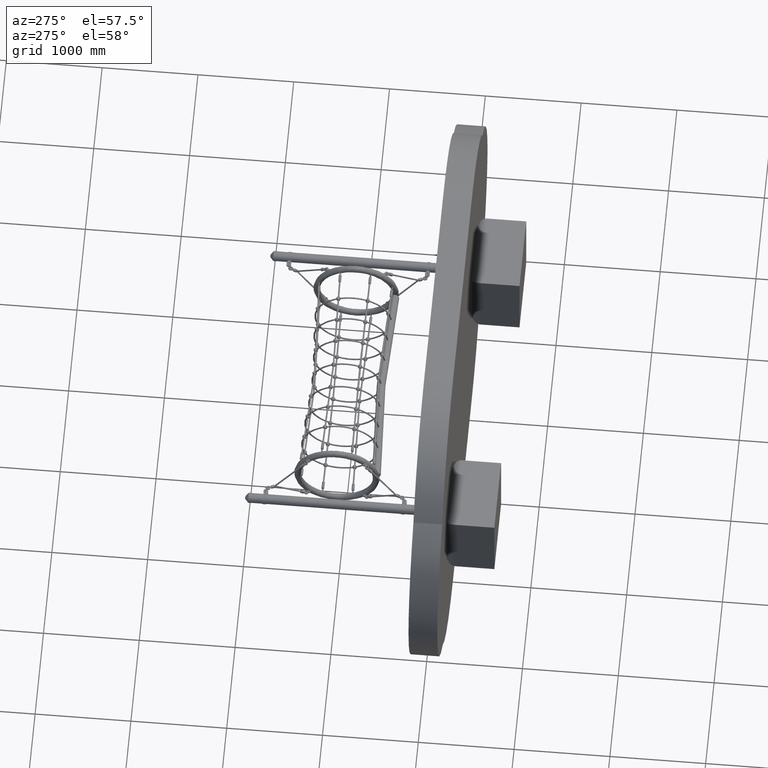
[diagram: clean part render]
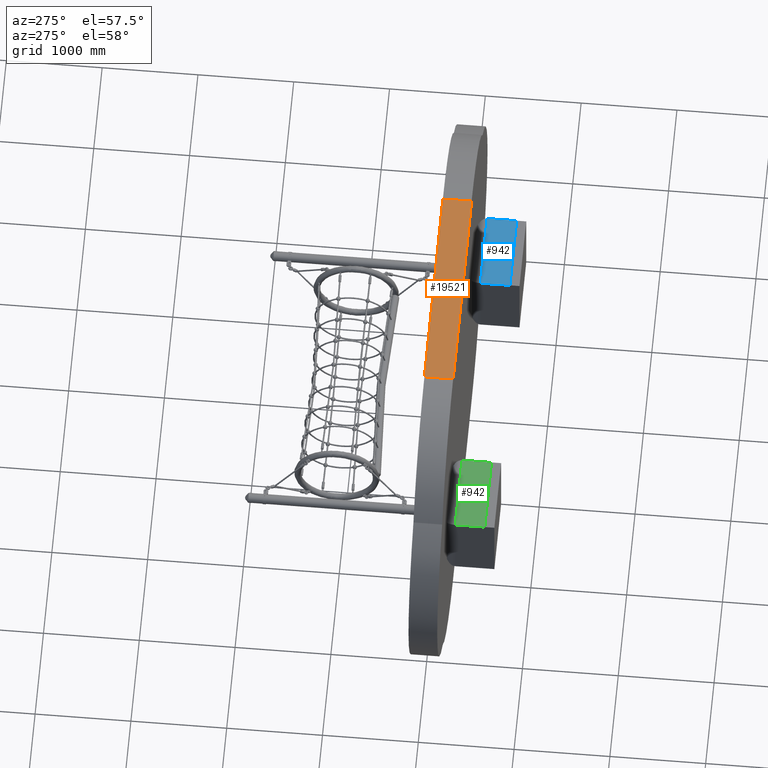
[diagram: same view with three faces highlighted in distinct colors, each labeled with its STEP entity id]
A machine part, auxiliary view with three faces highlighted in distinct colors.
Their STEP definitions:

[orange] entity #19521 — the highlighted planar face has unit normal (0.0001, 0, -1).
#552 = LINE ( 'NONE', #3046, #28183 ) ;
#2391 = LINE ( 'NONE', #34105, #29865 ) ;
#2535 = CARTESIAN_POINT ( 'NONE',  ( 2.600000000000000100, 0.0000000000000000000, 1.961999999999999700 ) ) ;
#3046 = CARTESIAN_POINT ( 'NONE',  ( 0.3999999999999999100, 0.2999999999999999900, 1.962000000000000200 ) ) ;
#5821 = ORIENTED_EDGE ( 'NONE', *, *, #6701, .F. ) ;
#6123 = ORIENTED_EDGE ( 'NONE', *, *, #20514, .F. ) ;
#6701 = EDGE_CURVE ( 'NONE', #30652, #32998, #17363, .T. ) ;
#8747 = CARTESIAN_POINT ( 'NONE',  ( 2.600000000000000100, 0.2999999999999999900, 1.961999999999999700 ) ) ;
#9187 = CARTESIAN_POINT ( 'NONE',  ( 0.3999999999999999700, 0.2999999999999999900, 1.962000000000000200 ) ) ;
#9399 = LINE ( 'NONE', #29875, #22875 ) ;
#9799 = EDGE_LOOP ( 'NONE', ( #6123, #25415, #12569, #5821 ) ) ;
#10168 = VECTOR ( 'NONE', #25816, 1.000000000000000000 ) ;
#11498 = DIRECTION ( 'NONE',  ( -1.000000000000000000, 0.0000000000000000000, 2.018587317500284600E-016 ) ) ;
#12298 = CARTESIAN_POINT ( 'NONE',  ( 0.4000000000000001300, 0.0000000000000000000, 1.962000000000000200 ) ) ;
#12435 = CARTESIAN_POINT ( 'NONE',  ( 2.600000000000000500, 0.0000000000000000000, 1.961999999999999700 ) ) ;
#12569 = ORIENTED_EDGE ( 'NONE', *, *, #14367, .F. ) ;
#13777 = PLANE ( 'NONE',  #16251 ) ;
#14367 = EDGE_CURVE ( 'NONE', #32998, #27892, #552, .T. ) ;
#16193 = DIRECTION ( 'NONE',  ( -0.0000000000000000000, -1.000000000000000000, -0.0000000000000000000 ) ) ;
#16251 = AXIS2_PLACEMENT_3D ( 'NONE', #8747, #27307, #11498 ) ;
#17363 = LINE ( 'NONE', #2535, #10168 ) ;
#19193 = EDGE_CURVE ( 'NONE', #27892, #22388, #9399, .T. ) ;
#19521 = ADVANCED_FACE ( 'NONE', ( #24004 ), #13777, .F. ) ;
#20317 = CARTESIAN_POINT ( 'NONE',  ( 2.600000000000000100, 0.2999999999999999900, 1.962000000000000000 ) ) ;
#20514 = EDGE_CURVE ( 'NONE', #22388, #30652, #2391, .T. ) ;
#22232 = DIRECTION ( 'NONE',  ( 1.000000000000000000, 0.0000000000000000000, -0.0000000000000000000 ) ) ;
#22388 = VERTEX_POINT ( 'NONE', #20317 ) ;
#22875 = VECTOR ( 'NONE', #22232, 1.000000000000000000 ) ;
#24004 = FACE_OUTER_BOUND ( 'NONE', #9799, .T. ) ;
#25415 = ORIENTED_EDGE ( 'NONE', *, *, #19193, .F. ) ;
#25816 = DIRECTION ( 'NONE',  ( -1.000000000000000000, 0.0000000000000000000, 2.018587317500284600E-016 ) ) ;
#27307 = DIRECTION ( 'NONE',  ( -2.018587317500284600E-016, 0.0000000000000000000, -1.000000000000000000 ) ) ;
#27892 = VERTEX_POINT ( 'NONE', #9187 ) ;
#28183 = VECTOR ( 'NONE', #29672, 1.000000000000000000 ) ;
#29672 = DIRECTION ( 'NONE',  ( 0.0000000000000000000, 1.000000000000000000, 0.0000000000000000000 ) ) ;
#29865 = VECTOR ( 'NONE', #16193, 1.000000000000000000 ) ;
#29875 = CARTESIAN_POINT ( 'NONE',  ( 3.000000000000000000, 0.2999999999999999900, 1.962000000000000200 ) ) ;
#30652 = VERTEX_POINT ( 'NONE', #12435 ) ;
#32998 = VERTEX_POINT ( 'NONE', #12298 ) ;
#34105 = CARTESIAN_POINT ( 'NONE',  ( 2.600000000000000100, 0.2999999999999999900, 1.961999999999999700 ) ) ;

[blue] entity #942 — the highlighted planar face has unit normal (0, 0, -1).
#942 = ADVANCED_FACE ( 'NONE', ( #9864 ), #22914, .F. ) ;
#1705 = DIRECTION ( 'NONE',  ( 2.220446049250314100E-016, -1.000000000000000000, -0.0000000000000000000 ) ) ;
#1750 = CARTESIAN_POINT ( 'NONE',  ( 0.0000000000000000000, 0.09999999999999992200, 0.8000000000000000400 ) ) ;
#1793 = DIRECTION ( 'NONE',  ( -1.000000000000000000, -0.0000000000000000000, -0.0000000000000000000 ) ) ;
#2329 = CARTESIAN_POINT ( 'NONE',  ( 0.8000000000000000400, 0.09999999999999992200, 0.8000000000000000400 ) ) ;
#2664 = DIRECTION ( 'NONE',  ( -1.836970198721030200E-016, 1.000000000000000000, -0.0000000000000000000 ) ) ;
#2700 = CARTESIAN_POINT ( 'NONE',  ( 0.0000000000000000000, 0.09999999999999992200, 0.8000000000000000400 ) ) ;
#2978 = CARTESIAN_POINT ( 'NONE',  ( 1.387778780781445700E-017, 0.4085786437626903200, 0.8000000000000001600 ) ) ;
#3896 = VECTOR ( 'NONE', #2664, 1.000000000000000000 ) ;
#4766 = LINE ( 'NONE', #2329, #10356 ) ;
#5116 = DIRECTION ( 'NONE',  ( 1.000000000000000000, -0.0000000000000000000, 0.0000000000000000000 ) ) ;
#5635 = CARTESIAN_POINT ( 'NONE',  ( -9.184850993605148400E-017, 0.4085786437626903200, 0.8000000000000000400 ) ) ;
#9514 = EDGE_CURVE ( 'NONE', #29805, #22408, #28937, .T. ) ;
#9668 = EDGE_CURVE ( 'NONE', #11598, #29805, #11200, .T. ) ;
#9722 = EDGE_CURVE ( 'NONE', #15333, #11598, #31269, .T. ) ;
#9726 = EDGE_CURVE ( 'NONE', #22408, #15333, #4766, .T. ) ;
#9864 = FACE_OUTER_BOUND ( 'NONE', #25950, .T. ) ;
#10356 = VECTOR ( 'NONE', #1705, 1.000000000000000000 ) ;
#11200 = LINE ( 'NONE', #2700, #3896 ) ;
#11598 = VERTEX_POINT ( 'NONE', #34085 ) ;
#14218 = VECTOR ( 'NONE', #5116, 1.000000000000000000 ) ;
#15333 = VERTEX_POINT ( 'NONE', #17175 ) ;
#17175 = CARTESIAN_POINT ( 'NONE',  ( 0.8000000000000000400, 0.09999999999999992200, 0.8000000000000000400 ) ) ;
#21144 = DIRECTION ( 'NONE',  ( -1.000000000000000000, 0.0000000000000000000, -0.0000000000000000000 ) ) ;
#21259 = DIRECTION ( 'NONE',  ( 0.0000000000000000000, 0.0000000000000000000, -1.000000000000000000 ) ) ;
#21301 = CARTESIAN_POINT ( 'NONE',  ( -9.184850993605148400E-017, 0.5999999999999998700, 0.8000000000000000400 ) ) ;
#22408 = VERTEX_POINT ( 'NONE', #23090 ) ;
#22914 = PLANE ( 'NONE',  #26477 ) ;
#23090 = CARTESIAN_POINT ( 'NONE',  ( 0.8000000000000000400, 0.4085786437626902600, 0.8000000000000000400 ) ) ;
#24539 = VECTOR ( 'NONE', #1793, 1.000000000000000000 ) ;
#25950 = EDGE_LOOP ( 'NONE', ( #31485, #34183, #34138, #26403 ) ) ;
#26403 = ORIENTED_EDGE ( 'NONE', *, *, #9726, .F. ) ;
#26477 = AXIS2_PLACEMENT_3D ( 'NONE', #21301, #21259, #21144 ) ;
#28937 = LINE ( 'NONE', #5635, #14218 ) ;
#29805 = VERTEX_POINT ( 'NONE', #2978 ) ;
#31269 = LINE ( 'NONE', #1750, #24539 ) ;
#31485 = ORIENTED_EDGE ( 'NONE', *, *, #9514, .F. ) ;
#34085 = CARTESIAN_POINT ( 'NONE',  ( 0.0000000000000000000, 0.09999999999999992200, 0.8000000000000000400 ) ) ;
#34138 = ORIENTED_EDGE ( 'NONE', *, *, #9722, .F. ) ;
#34183 = ORIENTED_EDGE ( 'NONE', *, *, #9668, .F. ) ;

[green] entity #942 — the highlighted planar face has unit normal (0, 0, -1).
#942 = ADVANCED_FACE ( 'NONE', ( #9864 ), #22914, .F. ) ;
#1705 = DIRECTION ( 'NONE',  ( 2.220446049250314100E-016, -1.000000000000000000, -0.0000000000000000000 ) ) ;
#1750 = CARTESIAN_POINT ( 'NONE',  ( 0.0000000000000000000, 0.09999999999999992200, 0.8000000000000000400 ) ) ;
#1793 = DIRECTION ( 'NONE',  ( -1.000000000000000000, -0.0000000000000000000, -0.0000000000000000000 ) ) ;
#2329 = CARTESIAN_POINT ( 'NONE',  ( 0.8000000000000000400, 0.09999999999999992200, 0.8000000000000000400 ) ) ;
#2664 = DIRECTION ( 'NONE',  ( -1.836970198721030200E-016, 1.000000000000000000, -0.0000000000000000000 ) ) ;
#2700 = CARTESIAN_POINT ( 'NONE',  ( 0.0000000000000000000, 0.09999999999999992200, 0.8000000000000000400 ) ) ;
#2978 = CARTESIAN_POINT ( 'NONE',  ( 1.387778780781445700E-017, 0.4085786437626903200, 0.8000000000000001600 ) ) ;
#3896 = VECTOR ( 'NONE', #2664, 1.000000000000000000 ) ;
#4766 = LINE ( 'NONE', #2329, #10356 ) ;
#5116 = DIRECTION ( 'NONE',  ( 1.000000000000000000, -0.0000000000000000000, 0.0000000000000000000 ) ) ;
#5635 = CARTESIAN_POINT ( 'NONE',  ( -9.184850993605148400E-017, 0.4085786437626903200, 0.8000000000000000400 ) ) ;
#9514 = EDGE_CURVE ( 'NONE', #29805, #22408, #28937, .T. ) ;
#9668 = EDGE_CURVE ( 'NONE', #11598, #29805, #11200, .T. ) ;
#9722 = EDGE_CURVE ( 'NONE', #15333, #11598, #31269, .T. ) ;
#9726 = EDGE_CURVE ( 'NONE', #22408, #15333, #4766, .T. ) ;
#9864 = FACE_OUTER_BOUND ( 'NONE', #25950, .T. ) ;
#10356 = VECTOR ( 'NONE', #1705, 1.000000000000000000 ) ;
#11200 = LINE ( 'NONE', #2700, #3896 ) ;
#11598 = VERTEX_POINT ( 'NONE', #34085 ) ;
#14218 = VECTOR ( 'NONE', #5116, 1.000000000000000000 ) ;
#15333 = VERTEX_POINT ( 'NONE', #17175 ) ;
#17175 = CARTESIAN_POINT ( 'NONE',  ( 0.8000000000000000400, 0.09999999999999992200, 0.8000000000000000400 ) ) ;
#21144 = DIRECTION ( 'NONE',  ( -1.000000000000000000, 0.0000000000000000000, -0.0000000000000000000 ) ) ;
#21259 = DIRECTION ( 'NONE',  ( 0.0000000000000000000, 0.0000000000000000000, -1.000000000000000000 ) ) ;
#21301 = CARTESIAN_POINT ( 'NONE',  ( -9.184850993605148400E-017, 0.5999999999999998700, 0.8000000000000000400 ) ) ;
#22408 = VERTEX_POINT ( 'NONE', #23090 ) ;
#22914 = PLANE ( 'NONE',  #26477 ) ;
#23090 = CARTESIAN_POINT ( 'NONE',  ( 0.8000000000000000400, 0.4085786437626902600, 0.8000000000000000400 ) ) ;
#24539 = VECTOR ( 'NONE', #1793, 1.000000000000000000 ) ;
#25950 = EDGE_LOOP ( 'NONE', ( #31485, #34183, #34138, #26403 ) ) ;
#26403 = ORIENTED_EDGE ( 'NONE', *, *, #9726, .F. ) ;
#26477 = AXIS2_PLACEMENT_3D ( 'NONE', #21301, #21259, #21144 ) ;
#28937 = LINE ( 'NONE', #5635, #14218 ) ;
#29805 = VERTEX_POINT ( 'NONE', #2978 ) ;
#31269 = LINE ( 'NONE', #1750, #24539 ) ;
#31485 = ORIENTED_EDGE ( 'NONE', *, *, #9514, .F. ) ;
#34085 = CARTESIAN_POINT ( 'NONE',  ( 0.0000000000000000000, 0.09999999999999992200, 0.8000000000000000400 ) ) ;
#34138 = ORIENTED_EDGE ( 'NONE', *, *, #9722, .F. ) ;
#34183 = ORIENTED_EDGE ( 'NONE', *, *, #9668, .F. ) ;